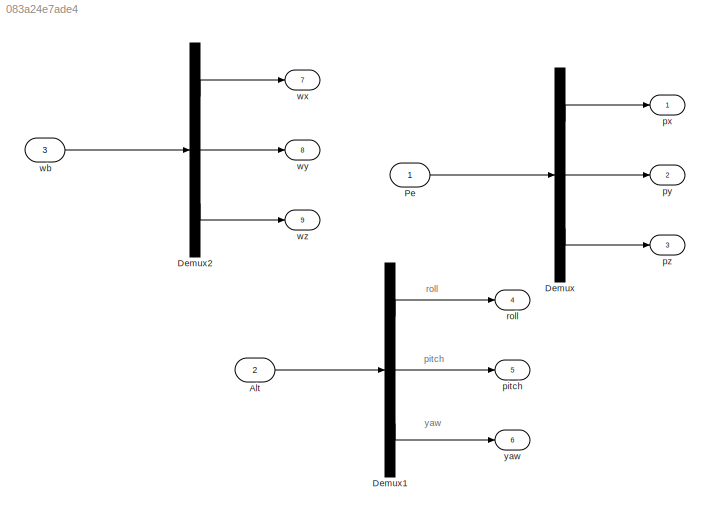
MODEL slx_083a24e7ade4
KIND model
CONFIG AbsTol = auto
CONFIG EnableMultiTasking = off
CONFIG FixedStep = auto
CONFIG MaxStep = auto
CONFIG MinStep = auto
CONFIG RelTol = 1e-3
CONFIG SampleTimeConstraint = Unconstrained
CONFIG SolverName = VariableStepAuto
CONFIG StartTime = 0.0
CONFIG StopTime = 10.0
BLOCK [Inport] Alt
  Port = 2
BLOCK [Demux] Demux
  Outputs = 3
  Ports = [1, 3]
BLOCK [Demux] Demux1
  Outputs = 3
  Ports = [1, 3]
BLOCK [Demux] Demux2
  Outputs = 3
  Ports = [1, 3]
BLOCK [Inport] Pe
BLOCK [Outport] pitch
  Port = 5
BLOCK [Outport] px
BLOCK [Outport] py
  Port = 2
BLOCK [Outport] pz
  Port = 3
BLOCK [Outport] roll
  Port = 4
BLOCK [Inport] wb
  Port = 3
BLOCK [Outport] wx
  Port = 7
BLOCK [Outport] wy
  Port = 8
BLOCK [Outport] wz
  Port = 9
BLOCK [Outport] yaw
  Port = 6
ANNOTATION (root): pitch
ANNOTATION (root): roll
ANNOTATION (root): yaw
LINE Alt:1 -> Demux1:1
LINE Demux1:1 -> roll:1
LINE Demux1:2 -> pitch:1
LINE Demux1:3 -> yaw:1
LINE Demux2:1 -> wx:1
LINE Demux2:2 -> wy:1
LINE Demux2:3 -> wz:1
LINE Demux:1 -> px:1
LINE Demux:2 -> py:1
LINE Demux:3 -> pz:1
LINE Pe:1 -> Demux:1
LINE wb:1 -> Demux2:1
